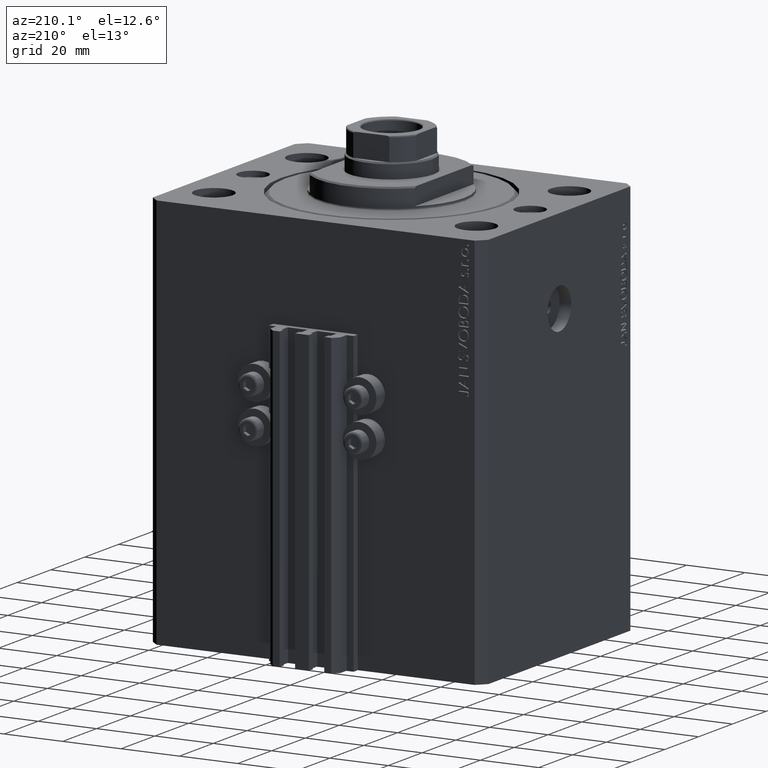
[diagram: clean part render]
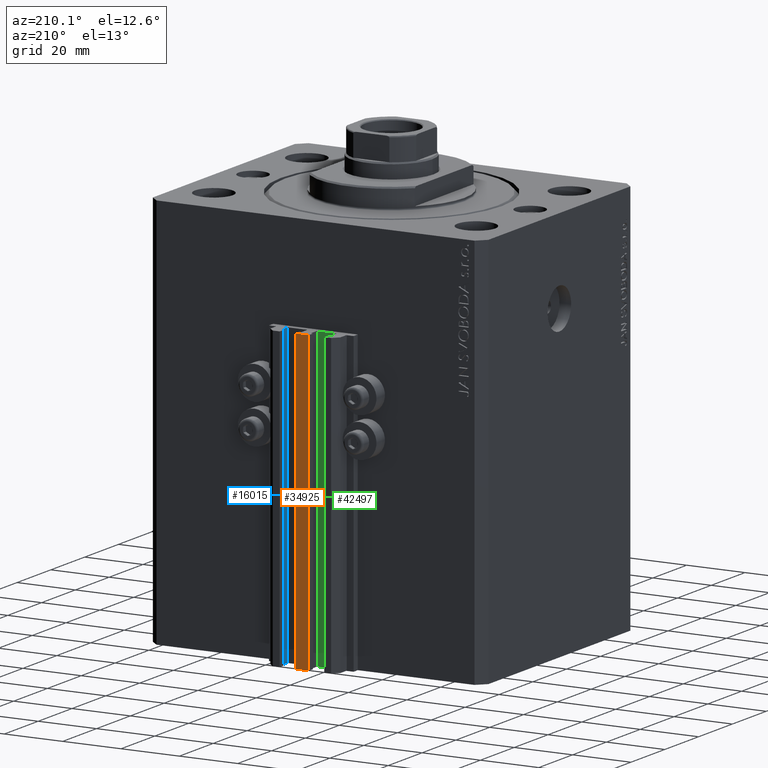
[diagram: same view with three faces highlighted in distinct colors, each labeled with its STEP entity id]
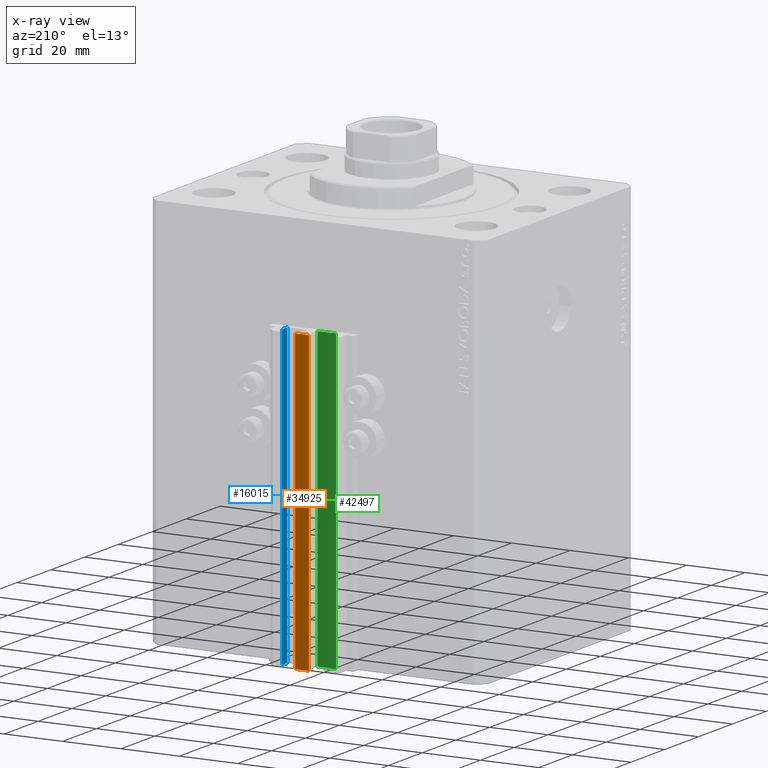
[diagram: x-ray of the same camera — body ghosted, the three highlighted faces saturated]
A machine part, auxiliary view with three faces highlighted in distinct colors.
The next image is the same camera in x-ray (body ghosted, the three faces saturated) — at least one of them is partly hidden behind the body in this view.
Their STEP definitions:

[orange] entity #34925 — the highlighted planar face has unit normal (0, -1, 0).
#3652 = EDGE_CURVE ( 'NONE', #19996, #19481, #20571, .T. ) ;
#4618 = DIRECTION ( 'NONE',  ( 0.000000000000000000, -1.000000000000000000, 0.000000000000000000 ) ) ;
#5969 = DIRECTION ( 'NONE',  ( 0.000000000000000000, 0.000000000000000000, 1.000000000000000000 ) ) ;
#6219 = DIRECTION ( 'NONE',  ( 1.000000000000000000, 0.000000000000000000, 0.000000000000000000 ) ) ;
#6537 = VECTOR ( 'NONE', #12577, 1000.000000000000000 ) ;
#8117 = VERTEX_POINT ( 'NONE', #32613 ) ;
#8230 = AXIS2_PLACEMENT_3D ( 'NONE', #43748, #4618, #33265 ) ;
#9953 = EDGE_CURVE ( 'NONE', #19481, #8117, #20552, .T. ) ;
#10269 = CARTESIAN_POINT ( 'NONE',  ( -2.350000000000003642, 53.00000000000000000, -135.0000000000000000 ) ) ;
#12577 = DIRECTION ( 'NONE',  ( 0.000000000000000000, 0.000000000000000000, 1.000000000000000000 ) ) ;
#15690 = ORIENTED_EDGE ( 'NONE', *, *, #3652, .F. ) ;
#16653 = DIRECTION ( 'NONE',  ( 1.000000000000000000, 0.000000000000000000, 0.000000000000000000 ) ) ;
#17181 = CARTESIAN_POINT ( 'NONE',  ( 2.349999999999999645, 53.00000000000000000, -135.0000000000000000 ) ) ;
#19481 = VERTEX_POINT ( 'NONE', #37201 ) ;
#19996 = VERTEX_POINT ( 'NONE', #24011 ) ;
#20143 = EDGE_LOOP ( 'NONE', ( #39088, #32525, #15690, #22633 ) ) ;
#20242 = LINE ( 'NONE', #42188, #46942 ) ;
#20552 = LINE ( 'NONE', #17181, #31369 ) ;
#20571 = LINE ( 'NONE', #10269, #30626 ) ;
#22633 = ORIENTED_EDGE ( 'NONE', *, *, #25712, .T. ) ;
#24011 = CARTESIAN_POINT ( 'NONE',  ( -2.350000000000003642, 53.00000000000000000, -135.0000000000000000 ) ) ;
#25279 = VERTEX_POINT ( 'NONE', #33668 ) ;
#25712 = EDGE_CURVE ( 'NONE', #19996, #25279, #26923, .T. ) ;
#26923 = LINE ( 'NONE', #41459, #6537 ) ;
#29216 = FACE_OUTER_BOUND ( 'NONE', #20143, .T. ) ;
#30532 = EDGE_CURVE ( 'NONE', #25279, #8117, #20242, .T. ) ;
#30626 = VECTOR ( 'NONE', #6219, 1000.000000000000000 ) ;
#31369 = VECTOR ( 'NONE', #5969, 1000.000000000000000 ) ;
#32525 = ORIENTED_EDGE ( 'NONE', *, *, #9953, .F. ) ;
#32613 = CARTESIAN_POINT ( 'NONE',  ( 2.349999999999999645, 53.00000000000000000, -33.00000000000000000 ) ) ;
#33265 = DIRECTION ( 'NONE',  ( 0.000000000000000000, -0.000000000000000000, -1.000000000000000000 ) ) ;
#33668 = CARTESIAN_POINT ( 'NONE',  ( -2.350000000000003642, 53.00000000000000000, -33.00000000000000000 ) ) ;
#34925 = ADVANCED_FACE ( 'NONE', ( #29216 ), #40891, .F. ) ;
#37201 = CARTESIAN_POINT ( 'NONE',  ( 2.349999999999999645, 53.00000000000000000, -135.0000000000000000 ) ) ;
#39088 = ORIENTED_EDGE ( 'NONE', *, *, #30532, .T. ) ;
#40891 = PLANE ( 'NONE',  #8230 ) ;
#41459 = CARTESIAN_POINT ( 'NONE',  ( -2.350000000000003642, 53.00000000000000000, -135.0000000000000000 ) ) ;
#42188 = CARTESIAN_POINT ( 'NONE',  ( -2.350000000000003642, 53.00000000000000000, -33.00000000000000000 ) ) ;
#43748 = CARTESIAN_POINT ( 'NONE',  ( -2.350000000000003642, 53.00000000000000000, -135.0000000000000000 ) ) ;
#46942 = VECTOR ( 'NONE', #16653, 1000.000000000000000 ) ;

[blue] entity #16015 — the highlighted planar face has unit normal (-1, 0, 0).
#436 = CARTESIAN_POINT ( 'NONE',  ( 8.400000000000000355, 47.19999999999998863, -33.00000000000000000 ) ) ;
#800 = AXIS2_PLACEMENT_3D ( 'NONE', #13559, #20506, #42672 ) ;
#915 = ORIENTED_EDGE ( 'NONE', *, *, #22373, .F. ) ;
#1210 = EDGE_LOOP ( 'NONE', ( #43352, #915, #15975, #16118 ) ) ;
#1291 = CARTESIAN_POINT ( 'NONE',  ( 8.400000000000003908, 50.39999999999999858, -135.0000000000000000 ) ) ;
#2282 = VERTEX_POINT ( 'NONE', #13491 ) ;
#4983 = CARTESIAN_POINT ( 'NONE',  ( 8.400000000000000355, 50.39999999999999858, -135.0000000000000000 ) ) ;
#5210 = DIRECTION ( 'NONE',  ( 0.000000000000000000, 0.000000000000000000, 1.000000000000000000 ) ) ;
#5900 = CARTESIAN_POINT ( 'NONE',  ( 8.400000000000003908, 50.39999999999999858, -135.0000000000000000 ) ) ;
#6222 = VERTEX_POINT ( 'NONE', #5900 ) ;
#7014 = VERTEX_POINT ( 'NONE', #436 ) ;
#7321 = VECTOR ( 'NONE', #5210, 1000.000000000000000 ) ;
#9022 = LINE ( 'NONE', #4983, #27031 ) ;
#10263 = EDGE_CURVE ( 'NONE', #45925, #7014, #33879, .T. ) ;
#13491 = CARTESIAN_POINT ( 'NONE',  ( 8.400000000000000355, 47.19999999999998863, -135.0000000000000000 ) ) ;
#13559 = CARTESIAN_POINT ( 'NONE',  ( 8.400000000000000355, 50.39999999999999858, -135.0000000000000000 ) ) ;
#15975 = ORIENTED_EDGE ( 'NONE', *, *, #20470, .T. ) ;
#16015 = ADVANCED_FACE ( 'NONE', ( #31485 ), #20264, .T. ) ;
#16118 = ORIENTED_EDGE ( 'NONE', *, *, #30471, .T. ) ;
#17700 = CARTESIAN_POINT ( 'NONE',  ( 8.400000000000003908, 50.39999999999999858, -33.00000000000000000 ) ) ;
#20264 = PLANE ( 'NONE',  #800 ) ;
#20470 = EDGE_CURVE ( 'NONE', #6222, #2282, #9022, .T. ) ;
#20506 = DIRECTION ( 'NONE',  ( -1.000000000000000000, 5.421010862427508365E-16, 0.000000000000000000 ) ) ;
#22373 = EDGE_CURVE ( 'NONE', #6222, #45925, #40681, .T. ) ;
#27031 = VECTOR ( 'NONE', #41719, 1000.000000000000000 ) ;
#28662 = VECTOR ( 'NONE', #41494, 1000.000000000000000 ) ;
#30471 = EDGE_CURVE ( 'NONE', #2282, #7014, #30537, .T. ) ;
#30537 = LINE ( 'NONE', #37910, #7321 ) ;
#31485 = FACE_OUTER_BOUND ( 'NONE', #1210, .T. ) ;
#33879 = LINE ( 'NONE', #40787, #28662 ) ;
#36957 = VECTOR ( 'NONE', #40438, 1000.000000000000000 ) ;
#37910 = CARTESIAN_POINT ( 'NONE',  ( 8.400000000000000355, 47.19999999999998863, -135.0000000000000000 ) ) ;
#40438 = DIRECTION ( 'NONE',  ( 0.000000000000000000, 0.000000000000000000, 1.000000000000000000 ) ) ;
#40681 = LINE ( 'NONE', #1291, #36957 ) ;
#40787 = CARTESIAN_POINT ( 'NONE',  ( 8.400000000000000355, 50.39999999999999858, -33.00000000000000000 ) ) ;
#41494 = DIRECTION ( 'NONE',  ( -5.421010862427508365E-16, -1.000000000000000000, 0.000000000000000000 ) ) ;
#41719 = DIRECTION ( 'NONE',  ( -5.421010862427508365E-16, -1.000000000000000000, 0.000000000000000000 ) ) ;
#42672 = DIRECTION ( 'NONE',  ( -5.421010862427508365E-16, -1.000000000000000000, 0.000000000000000000 ) ) ;
#43352 = ORIENTED_EDGE ( 'NONE', *, *, #10263, .F. ) ;
#45925 = VERTEX_POINT ( 'NONE', #17700 ) ;

[green] entity #42497 — the highlighted planar face has unit normal (0, 1, 0).
#899 = VERTEX_POINT ( 'NONE', #17721 ) ;
#1603 = EDGE_CURVE ( 'NONE', #19122, #35577, #36144, .T. ) ;
#3051 = EDGE_LOOP ( 'NONE', ( #11262, #5970, #33719, #10715 ) ) ;
#3061 = CARTESIAN_POINT ( 'NONE',  ( -1.800000000000000933, 46.99999999999999289, -135.0000000000000000 ) ) ;
#3275 = CARTESIAN_POINT ( 'NONE',  ( -1.800000000000000933, 46.99999999999999289, -135.0000000000000000 ) ) ;
#3624 = VECTOR ( 'NONE', #47049, 1000.000000000000000 ) ;
#5970 = ORIENTED_EDGE ( 'NONE', *, *, #22850, .F. ) ;
#5987 = DIRECTION ( 'NONE',  ( -1.000000000000000000, 0.000000000000000000, 0.000000000000000000 ) ) ;
#9575 = CARTESIAN_POINT ( 'NONE',  ( -1.800000000000000933, 46.99999999999999289, -33.00000000000000000 ) ) ;
#10002 = DIRECTION ( 'NONE',  ( 0.000000000000000000, 1.000000000000000000, -0.000000000000000000 ) ) ;
#10715 = ORIENTED_EDGE ( 'NONE', *, *, #29980, .T. ) ;
#11262 = ORIENTED_EDGE ( 'NONE', *, *, #18580, .F. ) ;
#13653 = LINE ( 'NONE', #17709, #3624 ) ;
#14666 = CARTESIAN_POINT ( 'NONE',  ( -1.800000000000000933, 46.99999999999999289, -135.0000000000000000 ) ) ;
#15607 = VECTOR ( 'NONE', #32337, 1000.000000000000000 ) ;
#16094 = AXIS2_PLACEMENT_3D ( 'NONE', #3061, #10002, #21468 ) ;
#17709 = CARTESIAN_POINT ( 'NONE',  ( -8.199999999999997513, 46.99999999999999289, -135.0000000000000000 ) ) ;
#17721 = CARTESIAN_POINT ( 'NONE',  ( -8.199999999999997513, 46.99999999999999289, -33.00000000000000000 ) ) ;
#18580 = EDGE_CURVE ( 'NONE', #47251, #899, #28194, .T. ) ;
#19122 = VERTEX_POINT ( 'NONE', #30119 ) ;
#19771 = CARTESIAN_POINT ( 'NONE',  ( -8.199999999999997513, 46.99999999999999289, -135.0000000000000000 ) ) ;
#21468 = DIRECTION ( 'NONE',  ( 0.000000000000000000, 0.000000000000000000, 1.000000000000000000 ) ) ;
#22850 = EDGE_CURVE ( 'NONE', #19122, #47251, #28591, .T. ) ;
#28156 = PLANE ( 'NONE',  #16094 ) ;
#28194 = LINE ( 'NONE', #9575, #44464 ) ;
#28591 = LINE ( 'NONE', #3275, #40767 ) ;
#29980 = EDGE_CURVE ( 'NONE', #35577, #899, #13653, .T. ) ;
#30119 = CARTESIAN_POINT ( 'NONE',  ( -1.800000000000000933, 46.99999999999999289, -135.0000000000000000 ) ) ;
#32337 = DIRECTION ( 'NONE',  ( -1.000000000000000000, 0.000000000000000000, 0.000000000000000000 ) ) ;
#33719 = ORIENTED_EDGE ( 'NONE', *, *, #1603, .T. ) ;
#35577 = VERTEX_POINT ( 'NONE', #19771 ) ;
#36144 = LINE ( 'NONE', #14666, #15607 ) ;
#38608 = CARTESIAN_POINT ( 'NONE',  ( -1.800000000000000933, 46.99999999999999289, -33.00000000000000000 ) ) ;
#40266 = DIRECTION ( 'NONE',  ( 0.000000000000000000, 0.000000000000000000, 1.000000000000000000 ) ) ;
#40767 = VECTOR ( 'NONE', #40266, 1000.000000000000000 ) ;
#42467 = FACE_OUTER_BOUND ( 'NONE', #3051, .T. ) ;
#42497 = ADVANCED_FACE ( 'NONE', ( #42467 ), #28156, .T. ) ;
#44464 = VECTOR ( 'NONE', #5987, 1000.000000000000000 ) ;
#47049 = DIRECTION ( 'NONE',  ( 0.000000000000000000, 0.000000000000000000, 1.000000000000000000 ) ) ;
#47251 = VERTEX_POINT ( 'NONE', #38608 ) ;